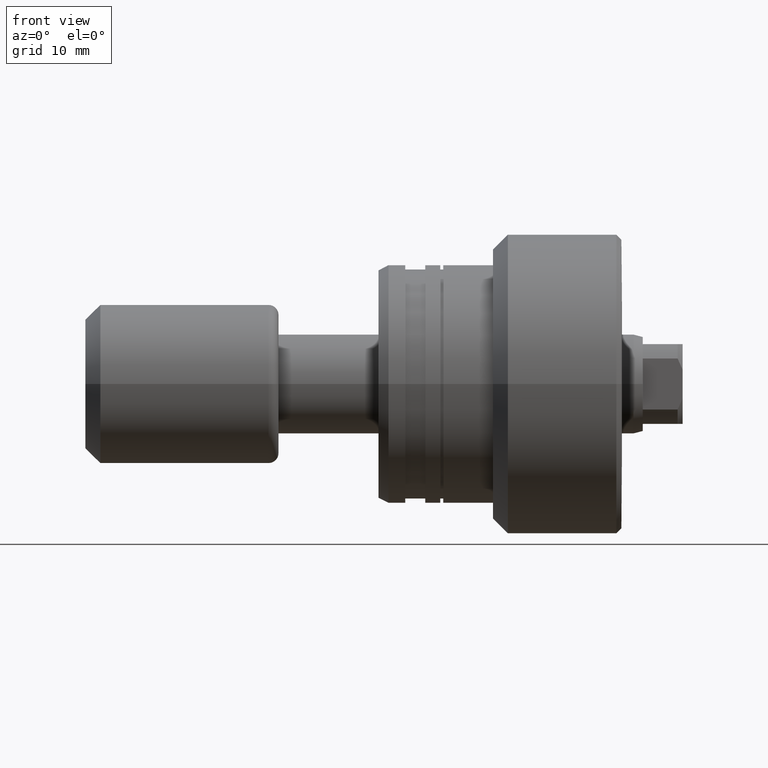
[diagram: clean part render]
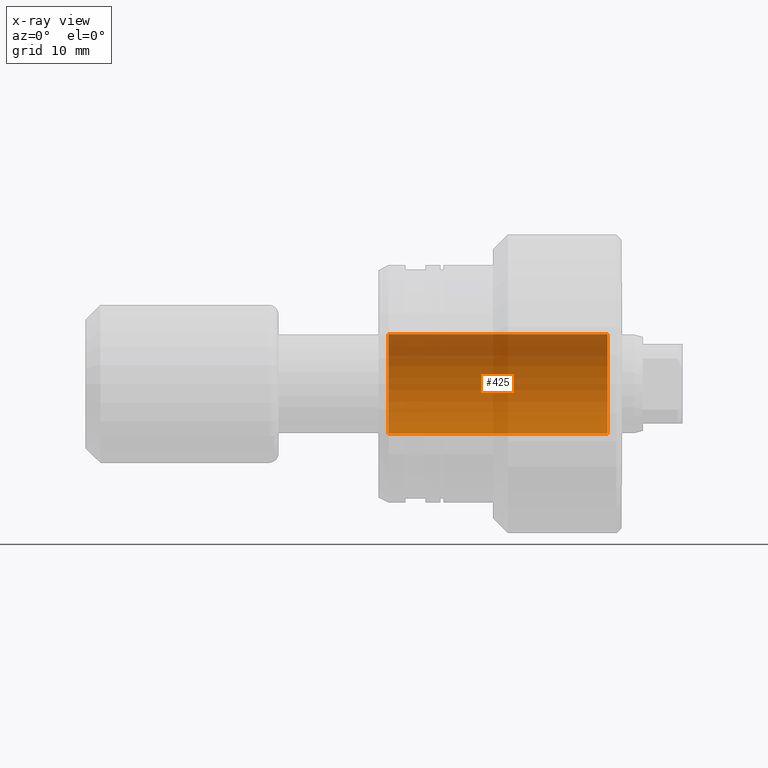
[diagram: x-ray — body ghosted, one internal face saturated and labeled with its STEP entity id]
A machine part, front view, then the same camera in x-ray: the body is ghosted and one INTERNAL B-rep face — a face not visible from any outside direction — is saturated and labeled: STEP entity #425.
In plain terms, the highlighted cylindrical surface (partial cylindrical patch) has radius 5 mm, axis along (1, 0, 0).
Its self-contained STEP definition (entity closure, byte-faithful):
#84 = DIRECTION ( 'NONE',  ( 0.000000000000000000, 0.000000000000000000, -1.000000000000000000 ) ) ;
#97 = EDGE_CURVE ( 'NONE', #1470, #320, #1422, .T. ) ;
#279 = VERTEX_POINT ( 'NONE', #621 ) ;
#320 = VERTEX_POINT ( 'NONE', #2353 ) ;
#425 = ADVANCED_FACE ( 'NONE', ( #2195 ), #2217, .F. ) ;
#477 = DIRECTION ( 'NONE',  ( 1.000000000000000000, -0.000000000000000000, -0.000000000000000000 ) ) ;
#554 = CARTESIAN_POINT ( 'NONE',  ( -23.49999999999997868, 0.000000000000000000, 0.000000000000000000 ) ) ;
#610 = DIRECTION ( 'NONE',  ( -1.000000000000000000, -0.000000000000000000, -0.000000000000000000 ) ) ;
#621 = CARTESIAN_POINT ( 'NONE',  ( -23.49999999999997868, 0.000000000000000000, -5.000000000000000000 ) ) ;
#643 = EDGE_CURVE ( 'NONE', #279, #1708, #2253, .T. ) ;
#720 = DIRECTION ( 'NONE',  ( 1.000000000000000000, -0.000000000000000000, -0.000000000000000000 ) ) ;
#746 = EDGE_CURVE ( 'NONE', #1708, #320, #1053, .T. ) ;
#758 = DIRECTION ( 'NONE',  ( 0.000000000000000000, 0.000000000000000000, 1.000000000000000000 ) ) ;
#802 = VECTOR ( 'NONE', #1337, 1000.000000000000000 ) ;
#838 = ORIENTED_EDGE ( 'NONE', *, *, #2212, .T. ) ;
#861 = EDGE_LOOP ( 'NONE', ( #2054, #838, #1399, #1274 ) ) ;
#924 = CARTESIAN_POINT ( 'NONE',  ( -1.500000000000000000, 0.000000000000000000, -5.000000000000000000 ) ) ;
#1042 = DIRECTION ( 'NONE',  ( 1.000000000000000000, 0.000000000000000000, 0.000000000000000000 ) ) ;
#1053 = CIRCLE ( 'NONE', #2146, 5.000000000000000000 ) ;
#1186 = CARTESIAN_POINT ( 'NONE',  ( -38.64213562373095101, 0.000000000000000000, -5.000000000000000000 ) ) ;
#1194 = CARTESIAN_POINT ( 'NONE',  ( -38.64213562373095101, 6.123233995736766282E-16, 5.000000000000000000 ) ) ;
#1274 = ORIENTED_EDGE ( 'NONE', *, *, #746, .T. ) ;
#1337 = DIRECTION ( 'NONE',  ( 1.000000000000000000, -0.000000000000000000, -0.000000000000000000 ) ) ;
#1388 = CARTESIAN_POINT ( 'NONE',  ( -1.500000000000000000, 0.000000000000000000, 0.000000000000000000 ) ) ;
#1399 = ORIENTED_EDGE ( 'NONE', *, *, #643, .T. ) ;
#1422 = LINE ( 'NONE', #1194, #1684 ) ;
#1463 = CARTESIAN_POINT ( 'NONE',  ( -23.49999999999997868, 6.123233995736766282E-16, 5.000000000000000000 ) ) ;
#1470 = VERTEX_POINT ( 'NONE', #1463 ) ;
#1645 = DIRECTION ( 'NONE',  ( 0.000000000000000000, 0.000000000000000000, -1.000000000000000000 ) ) ;
#1661 = CARTESIAN_POINT ( 'NONE',  ( -38.64213562373095101, 0.000000000000000000, 0.000000000000000000 ) ) ;
#1684 = VECTOR ( 'NONE', #477, 1000.000000000000000 ) ;
#1708 = VERTEX_POINT ( 'NONE', #924 ) ;
#1761 = AXIS2_PLACEMENT_3D ( 'NONE', #1661, #720, #1645 ) ;
#1778 = AXIS2_PLACEMENT_3D ( 'NONE', #554, #610, #758 ) ;
#2054 = ORIENTED_EDGE ( 'NONE', *, *, #97, .F. ) ;
#2146 = AXIS2_PLACEMENT_3D ( 'NONE', #1388, #1042, #84 ) ;
#2195 = FACE_OUTER_BOUND ( 'NONE', #861, .T. ) ;
#2212 = EDGE_CURVE ( 'NONE', #1470, #279, #2383, .T. ) ;
#2217 = CYLINDRICAL_SURFACE ( 'NONE', #1761, 5.000000000000000000 ) ;
#2253 = LINE ( 'NONE', #1186, #802 ) ;
#2353 = CARTESIAN_POINT ( 'NONE',  ( -1.500000000000000000, 6.123233995736766282E-16, 5.000000000000000000 ) ) ;
#2383 = CIRCLE ( 'NONE', #1778, 5.000000000000000000 ) ;